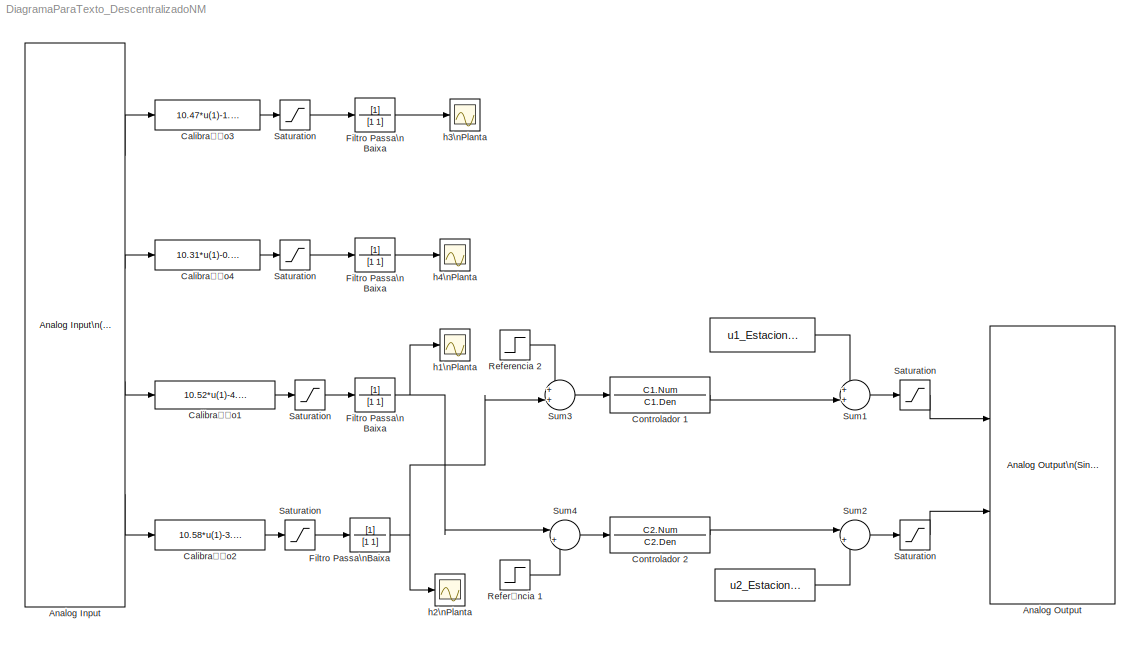
MODEL DiagramaParaTexto_DescentralizadoNM
KIND model
BLOCK [Constant]      
  SID = 51
  Value = u1_Estacionario
BLOCK [Constant]       
  SID = 53
  Value = u2_Estacionario
BLOCK [Reference] Analog Input  REF=daqlib/Analog Input\n(Single Sample)
  BlockSampleTime = 10e-3
  Channels = 1$0$$5$#1$1$$5$#1$2$$5$#1$3$$5$#
  Device = nidaq Dev1 (USB-6008)
  DeviceMenu = nidaq Dev1 (USB-6008)
  InputType = Differential
  NChannelsSelected = 4
  NPorts = 1 per hardware channel
  ObjConstructor = analoginput('nidaq','Dev1')
  Ports = [0, 4]
  SID = 1
  SourceBlock = daqlib/Analog Input\n(Single Sample)
  SourceType = Analog Input (Single Sample)
BLOCK [Reference] Analog Output  REF=daqlib/Analog Output\n(Single Sample)
  Channels = 1$0$$1$0$#1$1$$1$0$#
  Device = nidaq Dev1 (USB-6008)
  DeviceMenu = nidaq Dev1 (USB-6008)
  NChannelsSelected = 2
  NPorts = 1 per hardware channel
  ObjConstructor = analogoutput('nidaq','Dev1')
  Ports = [2]
  SID = 2
  SourceBlock = daqlib/Analog Output\n(Single Sample)
  SourceType = Analog Output (Single Sample)
BLOCK [Fcn] Calibração1
  Expr = 10.52*u(1)-4.105
  SID = 6
  SampleTime = 10e-3
BLOCK [Fcn] Calibração2
  Expr = 10.58*u(1)-3.069
  SID = 7
BLOCK [Fcn] Calibração3
  Expr = 10.47*u(1)-1.885
  SID = 8
BLOCK [Fcn] Calibração4
  Expr = 10.31*u(1)-0.52
  SID = 9
BLOCK [TransferFcn] Controlador 1
  Denominator = C1.Den
  Numerator = C1.Num
  SID = 75
BLOCK [TransferFcn] Controlador 2
  Denominator = C2.Den
  Numerator = C2.Num
  SID = 76
BLOCK [TransferFcn] Filtro Passa\n Baixa
  Denominator = [1 1]
  SID = 36
BLOCK [TransferFcn] Filtro Passa\n Baixa 
  Denominator = [1 1]
  SID = 37
BLOCK [TransferFcn] Filtro Passa\n Baixa  
  Denominator = [1 1]
  SID = 38
BLOCK [TransferFcn] Filtro Passa\nBaixa   
  Denominator = [1 1]
  SID = 41
BLOCK [Step] Referencia 2
  After = QT.ctes.h0(1)+1
  Before = QT.ctes.h0(1)
  SID = 27
  Time = 100
BLOCK [Step] Referência 1
  After = QT.ctes.h0(2)+1
  Before = QT.ctes.h0(2)
  SID = 28
  SampleTime = 0
  Time = 200
BLOCK [Saturate] Saturation 
  InputPortMap = u0
  LowerLimit = 0
  Ports = [1, 1]
  SID = 23
  UpperLimit = 23
BLOCK [Saturate] Saturation  
  InputPortMap = u0
  LowerLimit = 0
  Ports = [1, 1]
  SID = 24
  UpperLimit = 23
BLOCK [Saturate] Saturation   
  InputPortMap = u0
  LowerLimit = 0
  Ports = [1, 1]
  SID = 21
  SampleTime = 10e-3
  UpperLimit = 23
BLOCK [Saturate] Saturation    
  InputPortMap = u0
  LowerLimit = 0
  Ports = [1, 1]
  SID = 22
  UpperLimit = 23
BLOCK [Saturate] Saturation       
  InputPortMap = u0
  LowerLimit = 0
  Ports = [1, 1]
  SID = 25
  SampleTime = 10e-3
  UpperLimit = 0.7*5
BLOCK [Saturate] Saturation        
  InputPortMap = u0
  LowerLimit = 0
  Ports = [1, 1]
  SID = 26
  SampleTime = 10e-3
  UpperLimit = 0.7*5
BLOCK [Sum] Sum1
  IconShape = round
  InputSameDT = off
  Inputs = ++|
  OutDataTypeStr = Inherit: Inherit via internal rule
  Ports = [2, 1]
  SID = 60
  SaturateOnIntegerOverflow = off
BLOCK [Sum] Sum2
  IconShape = round
  InputSameDT = off
  Inputs = |++
  OutDataTypeStr = Inherit: Inherit via internal rule
  Ports = [2, 1]
  SID = 57
  SaturateOnIntegerOverflow = off
BLOCK [Sum] Sum3
  IconShape = round
  InputSameDT = off
  Inputs = ++|
  OutDataTypeStr = Inherit: Inherit via internal rule
  Ports = [2, 1]
  SID = 59
  SaturateOnIntegerOverflow = off
BLOCK [Sum] Sum4
  IconShape = round
  InputSameDT = off
  Inputs = |++
  OutDataTypeStr = Inherit: Inherit via internal rule
  Ports = [2, 1]
  SID = 58
  SaturateOnIntegerOverflow = off
BLOCK [Scope] h1\nPlanta
  DataFormat = StructureWithTime
  Floating = off
  LimitDataPoints = off
  NumInputPorts = 1
  Ports = [1]
  SID = 46
  SampleInput = on
  SampleTime = 10e-3
  SaveName = h1_real
  SaveToWorkspace = on
  TimeRange = 300
  YMax = 9
  YMin = 0
BLOCK [Scope] h2\nPlanta
  DataFormat = StructureWithTime
  Floating = off
  LimitDataPoints = off
  NumInputPorts = 1
  Ports = [1]
  SID = 47
  SampleInput = on
  SampleTime = 10e-3
  SaveName = h2_real
  SaveToWorkspace = on
  TimeRange = 300
  YMax = 9.5
  YMin = 0
BLOCK [Scope] h3\nPlanta
  DataFormat = StructureWithTime
  Floating = off
  LimitDataPoints = off
  NumInputPorts = 1
  Ports = [1]
  SID = 48
  SampleInput = on
  SampleTime = 10e-3
  SaveName = h3_real
  SaveToWorkspace = on
  TimeRange = 300
  YMax = 10.5
  YMin = 0
BLOCK [Scope] h4\nPlanta
  DataFormat = StructureWithTime
  Floating = off
  LimitDataPoints = off
  NumInputPorts = 1
  Ports = [1]
  SID = 49
  SampleInput = on
  SampleTime = 10e-3
  SaveName = h4_real
  SaveToWorkspace = on
  YMax = 12
  YMin = 0
LINE       :1 -> Sum2:2
LINE      :1 -> Sum1:1
LINE Analog Input:1 -> Calibração3:1
LINE Analog Input:2 -> Calibração4:1
LINE Analog Input:3 -> Calibração1:1
LINE Analog Input:4 -> Calibração2:1
LINE Calibração1:1 -> Saturation   :1
LINE Calibração2:1 -> Saturation    :1
LINE Calibração3:1 -> Saturation :1
LINE Calibração4:1 -> Saturation  :1
LINE Controlador 1:1 -> Sum1:2
LINE Controlador 2:1 -> Sum2:1
NET Filtro Passa\n Baixa  :1 -> Sum4:1, h1\nPlanta:1
LINE Filtro Passa\n Baixa :1 -> h4\nPlanta:1
LINE Filtro Passa\n Baixa:1 -> h3\nPlanta:1
NET Filtro Passa\nBaixa   :1 -> Sum3:2, h2\nPlanta:1
LINE Referencia 2:1 -> Sum3:1
LINE Referência 1:1 -> Sum4:2
LINE Saturation        :1 -> Analog Output:2
LINE Saturation       :1 -> Analog Output:1
LINE Saturation    :1 -> Filtro Passa\nBaixa   :1
LINE Saturation   :1 -> Filtro Passa\n Baixa  :1
LINE Saturation  :1 -> Filtro Passa\n Baixa :1
LINE Saturation :1 -> Filtro Passa\n Baixa:1
LINE Sum1:1 -> Saturation       :1
LINE Sum2:1 -> Saturation        :1
LINE Sum3:1 -> Controlador 1:1
LINE Sum4:1 -> Controlador 2:1
note: NET lines group one-source signal fan-out (src -> all destinations, sorted); 1:1 wires keep LINE
